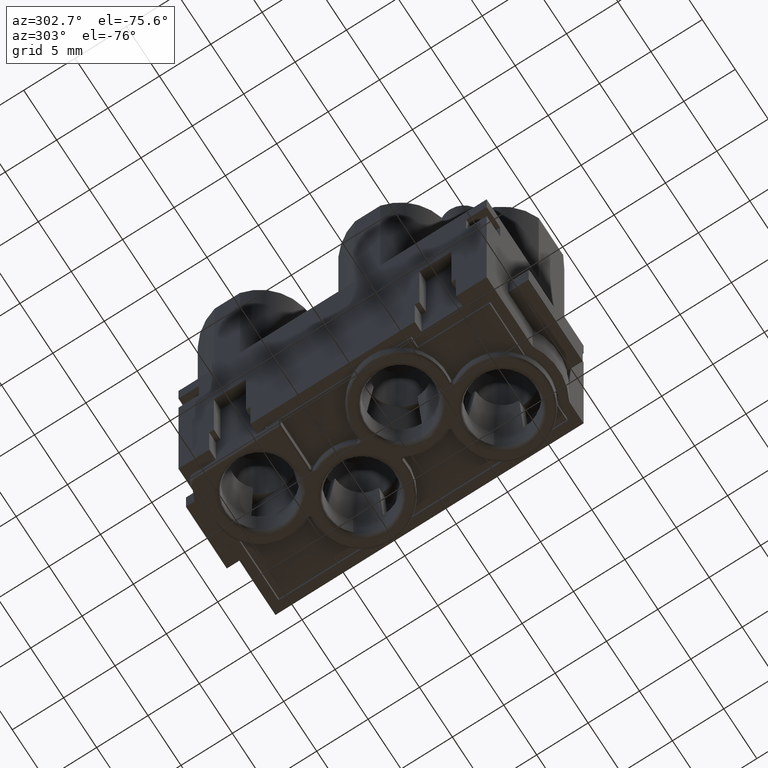
[diagram: clean part render]
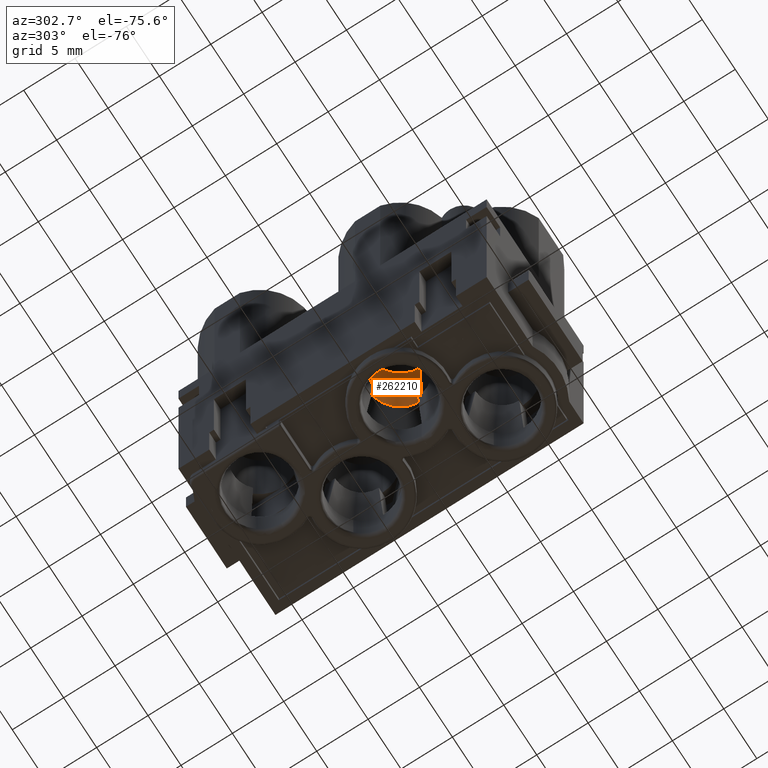
[diagram: same view with one face highlighted and labeled with its STEP entity id]
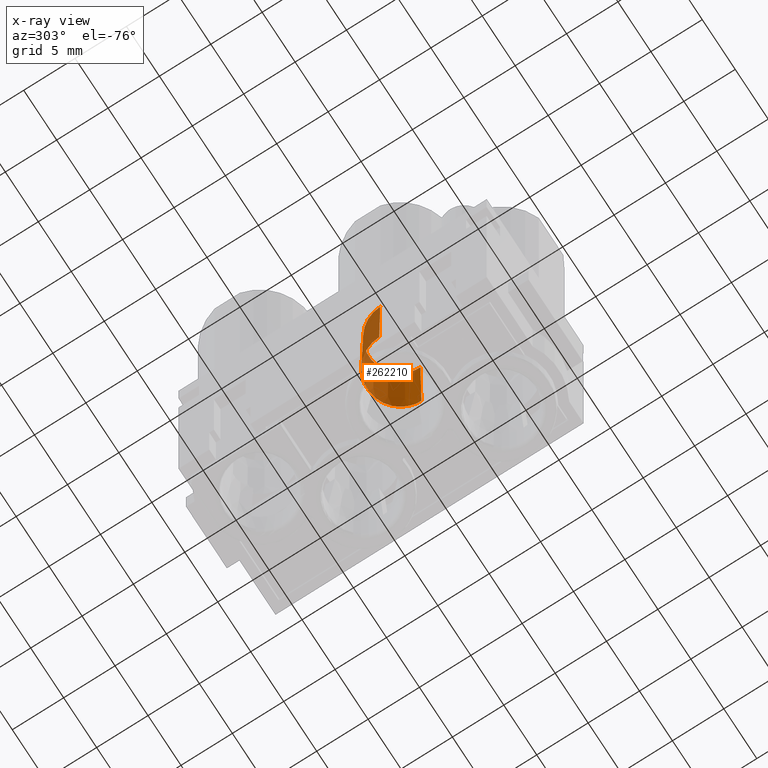
[diagram: x-ray of the same camera — body ghosted, the highlighted face saturated]
A machine part, auxiliary view. The second image highlights one B-rep face of the part: STEP entity #262210.
The next image is the same camera in x-ray: the body ghosted, the highlighted face saturated — about 34% of this face is hidden behind the body in this view.
In plain terms, the highlighted conical surface has half-angle 0.818 deg.
Its self-contained STEP definition (entity closure, byte-faithful):
#43030=CARTESIAN_POINT('',(43.247735,63.0571830000018,-20.4175407063042)
);
#43040=VERTEX_POINT('',#43030);
#43070=CARTESIAN_POINT('',(46.297735,63.0571830000018,-20.4175407063042)
);
#43080=DIRECTION('',(-4.24227485744583E-30,-1.,1.24773551709422E-14));
#43090=DIRECTION('',(1.,4.92593698570559E-30,7.34788079488412E-16));
#43100=AXIS2_PLACEMENT_3D('',#43070,#43080,#43090);
#43110=CIRCLE('',#43100,3.05);
#43120=CARTESIAN_POINT('',(49.347735,63.0571830000018,-20.4175407063042)
);
#43130=VERTEX_POINT('',#43120);
#46180=CARTESIAN_POINT('',(48.5604766997969,73.5571830000002,
-18.1547990065075));
#46190=VERTEX_POINT('',#46180);
#46410=CARTESIAN_POINT('',(46.297735,73.5571830000002,-20.4175407063043)
);
#46420=DIRECTION('',(4.24227485744583E-30,1.,-1.24773551709422E-14));
#46430=DIRECTION('',(1.,4.92593698570559E-30,7.34788079488412E-16));
#46440=AXIS2_PLACEMENT_3D('',#46410,#46420,#46430);
#46450=CIRCLE('',#46440,3.2);
#46460=CARTESIAN_POINT('',(43.097735,73.5571830000002,-20.4175407063044)
);
#46470=VERTEX_POINT('',#46460);
#46500=EDGE_CURVE('',#46470,#46190,#46450,.T.);
#47750=CARTESIAN_POINT('',(46.297735,73.5571830000002,-20.4175407063043)
);
#47760=DIRECTION('',(0.,1.,-1.24662185336501E-14));
#47770=DIRECTION('',(1.,4.92593698570559E-30,7.34788079488412E-16));
#47780=AXIS2_PLACEMENT_3D('',#47750,#47760,#47770);
#47790=CONICAL_SURFACE('',#47780,3.2,0.0142847425873988);
#47800=CARTESIAN_POINT('',(43.097735,73.5571830000002,-20.4175407063044)
);
#47810=DIRECTION('',(-0.0142842567828523,0.99989797479951,
-1.24966640867448E-14));
#47820=VECTOR('',#47810,224.022855976761);
#47830=LINE('',#47800,#47820);
#47840=EDGE_CURVE('',#43040,#46470,#47830,.T.);
#47870=CARTESIAN_POINT('',(49.497735,73.5571830000002,-20.4175407063043)
);
#47880=VERTEX_POINT('',#47870);
#47910=CARTESIAN_POINT('',(49.497735,73.5571830000002,-20.4175407063043)
);
#47920=DIRECTION('',(0.0142842567828523,0.99989797479951,
-1.24332292436649E-14));
#47930=VECTOR('',#47920,224.022855976761);
#47940=LINE('',#47910,#47930);
#47950=EDGE_CURVE('',#43130,#47880,#47940,.T.);
#71840=EDGE_CURVE('',#46190,#47880,#46450,.T.);
#262130=ORIENTED_EDGE('',*,*,#47840,.T.);
#262140=EDGE_CURVE('',#43130,#43040,#43110,.T.);
#262150=ORIENTED_EDGE('',*,*,#262140,.T.);
#262160=ORIENTED_EDGE('',*,*,#47950,.F.);
#262170=ORIENTED_EDGE('',*,*,#71840,.T.);
#262180=ORIENTED_EDGE('',*,*,#46500,.T.);
#262190=EDGE_LOOP('',(#262180,#262170,#262160,#262150,#262130));
#262200=FACE_OUTER_BOUND('',#262190,.T.);
#262210=ADVANCED_FACE('',(#262200),#47790,.F.);